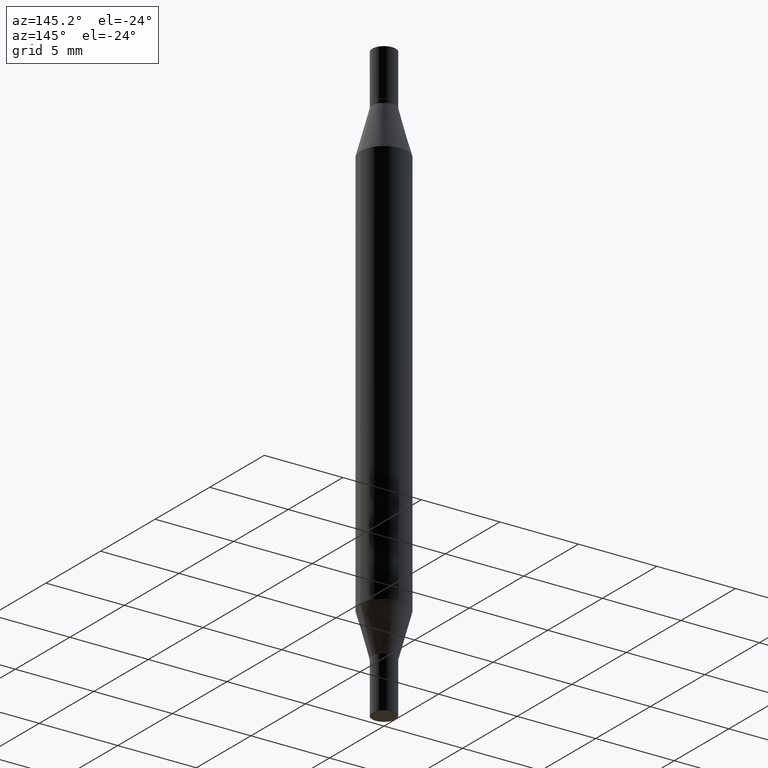
[diagram: clean part render]
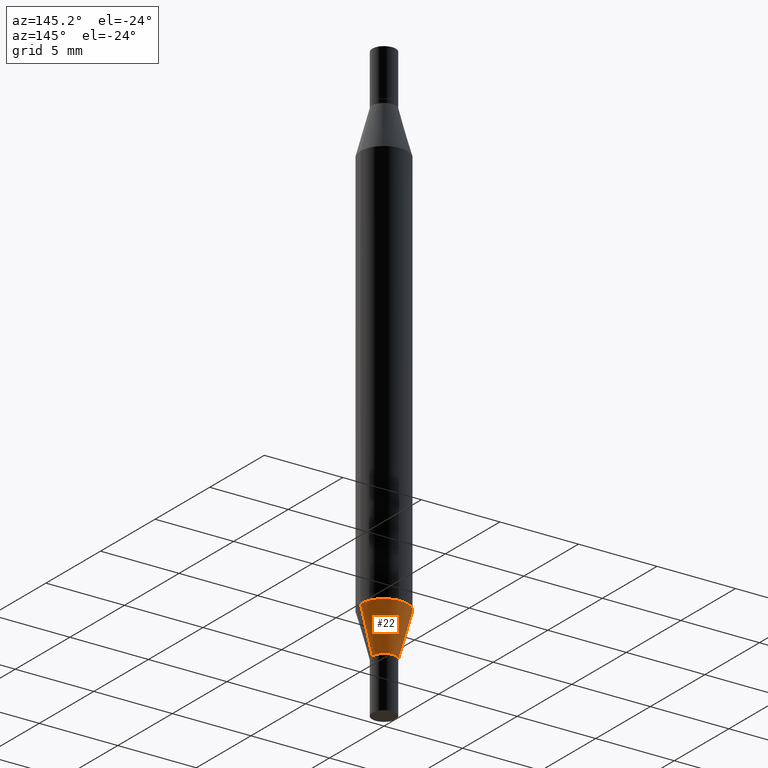
[diagram: same view with one face highlighted and labeled with its STEP entity id]
A machine part, auxiliary view. The second image highlights one B-rep face of the part: STEP entity #22.
In plain terms, the highlighted conical surface has half-angle 15 deg.
Its self-contained STEP definition (entity closure, byte-faithful):
#6 = EDGE_CURVE ( 'NONE', #651, #582, #607, .T. ) ;
#22 = ADVANCED_FACE ( 'NONE', ( #940 ), #829, .T. ) ;
#48 = DIRECTION ( 'NONE',  ( -2.445468806185136597E-29, 3.491481338843145583E-15, 1.000000000000000000 ) ) ;
#75 = LINE ( 'NONE', #896, #604 ) ;
#86 = DIRECTION ( 'NONE',  ( 1.000000000000000000, -6.982962677686281699E-15, 0.000000000000000000 ) ) ;
#98 = CARTESIAN_POINT ( 'NONE',  ( 3.345645873741884627E-29, -4.776695619671307391E-15, -1.368099999999999872 ) ) ;
#147 = AXIS2_PLACEMENT_3D ( 'NONE', #258, #785, #86 ) ;
#197 = CARTESIAN_POINT ( 'NONE',  ( 3.076410765668156654E-29, -4.392299240039190746E-15, -1.258004501176717804 ) ) ;
#210 = CARTESIAN_POINT ( 'NONE',  ( 0.02954999999999991661, -4.983042166796936213E-15, -1.368099999999999872 ) ) ;
#218 = CIRCLE ( 'NONE', #622, 0.05904999999999999832 ) ;
#258 = CARTESIAN_POINT ( 'NONE',  ( 3.345645873741884627E-29, -4.776695619671307391E-15, -1.368099999999999872 ) ) ;
#312 = EDGE_LOOP ( 'NONE', ( #633, #352, #894, #955 ) ) ;
#319 = CARTESIAN_POINT ( 'NONE',  ( -0.02954999999999991661, -4.566730241254198034E-15, -1.368099999999999872 ) ) ;
#352 = ORIENTED_EDGE ( 'NONE', *, *, #6, .T. ) ;
#439 = CIRCLE ( 'NONE', #947, 0.02954999999999991661 ) ;
#453 = EDGE_CURVE ( 'NONE', #879, #582, #218, .T. ) ;
#475 = EDGE_CURVE ( 'NONE', #645, #651, #439, .T. ) ;
#481 = VECTOR ( 'NONE', #627, 39.37007874015747433 ) ;
#582 = VERTEX_POINT ( 'NONE', #841 ) ;
#604 = VECTOR ( 'NONE', #969, 39.37007874015747433 ) ;
#607 = LINE ( 'NONE', #319, #481 ) ;
#622 = AXIS2_PLACEMENT_3D ( 'NONE', #197, #48, #795 ) ;
#627 = DIRECTION ( 'NONE',  ( -0.2588190451025213501, 5.211531920934551042E-15, 0.9659258262890682012 ) ) ;
#633 = ORIENTED_EDGE ( 'NONE', *, *, #475, .T. ) ;
#636 = DIRECTION ( 'NONE',  ( 1.000000000000000000, -6.982962677686281699E-15, 0.000000000000000000 ) ) ;
#645 = VERTEX_POINT ( 'NONE', #210 ) ;
#651 = VERTEX_POINT ( 'NONE', #871 ) ;
#679 = CARTESIAN_POINT ( 'NONE',  ( 0.05904999999999999832, -4.804643186156564878E-15, -1.258004501176717804 ) ) ;
#694 = DIRECTION ( 'NONE',  ( -2.445468806185136597E-29, 3.491481338843145583E-15, 1.000000000000000000 ) ) ;
#785 = DIRECTION ( 'NONE',  ( -2.445468806185136597E-29, 3.491481338843145583E-15, 1.000000000000000000 ) ) ;
#795 = DIRECTION ( 'NONE',  ( 1.000000000000000000, -6.982962677686273021E-15, 0.000000000000000000 ) ) ;
#813 = EDGE_CURVE ( 'NONE', #645, #879, #75, .T. ) ;
#829 = CONICAL_SURFACE ( 'NONE', #147, 0.02954999999999991661, 0.2617993877991500740 ) ;
#841 = CARTESIAN_POINT ( 'NONE',  ( -0.05904999999999999832, -2.206690208753205272E-15, -1.258004501176717804 ) ) ;
#871 = CARTESIAN_POINT ( 'NONE',  ( -0.02954999999999991661, -4.583140203546760956E-15, -1.368099999999999872 ) ) ;
#879 = VERTEX_POINT ( 'NONE', #679 ) ;
#894 = ORIENTED_EDGE ( 'NONE', *, *, #453, .F. ) ;
#896 = CARTESIAN_POINT ( 'NONE',  ( 0.02954999999999991661, -4.983042166796936213E-15, -1.368099999999999872 ) ) ;
#940 = FACE_OUTER_BOUND ( 'NONE', #312, .T. ) ;
#947 = AXIS2_PLACEMENT_3D ( 'NONE', #98, #694, #636 ) ;
#955 = ORIENTED_EDGE ( 'NONE', *, *, #813, .F. ) ;
#969 = DIRECTION ( 'NONE',  ( 0.2588190451025213501, 1.565188264969621968E-15, 0.9659258262890682012 ) ) ;